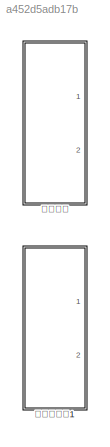
MODEL slx_a452d5adb17b
KIND model
CONFIG AbsTol = auto
CONFIG FixedStep = 0.001
CONFIG MaxStep = auto
CONFIG MinStep = auto
CONFIG RelTol = 1e-3
CONFIG SampleTimeConstraint = Unconstrained
CONFIG Solver = ode4
CONFIG SolverMode = Auto
CONFIG SolverName = ode4
CONFIG StartTime = 0.0
CONFIG StopTime = 10.0
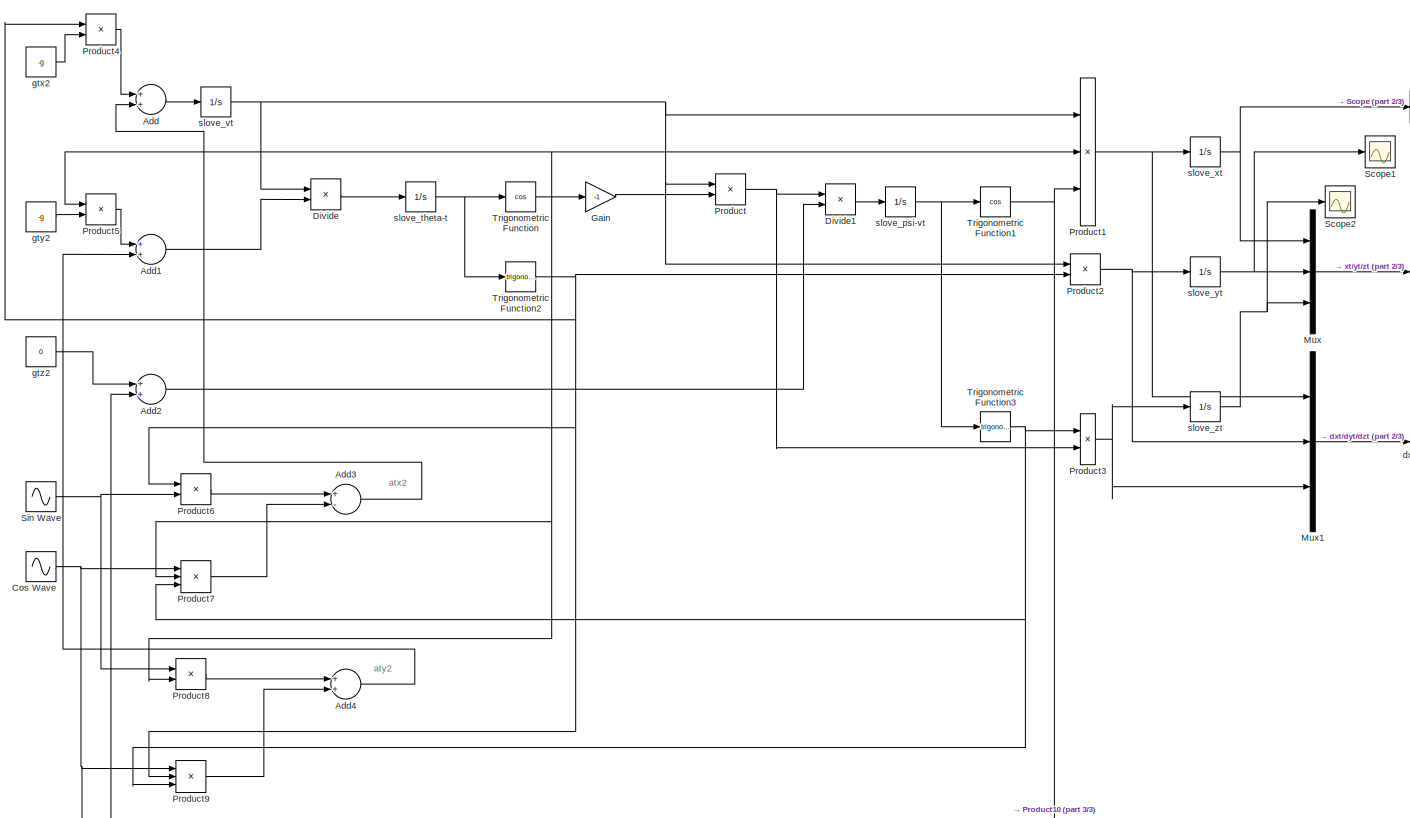
[diagram: 目标机动 - part 1/3, most of the canvas]
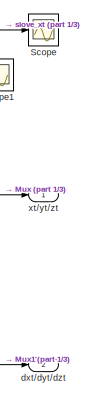
[diagram: 目标机动 - part 2/3, top right region]
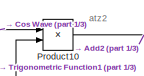
[diagram: 目标机动 - part 3/3, bottom left region]
BLOCK [SubSystem] 目标机动
  Ports = [0, 2]
  RequestExecContextInheritance = off
  Variant = off
BLOCK [Sum] 目标机动/Add
  InputSameDT = off
  OutDataTypeStr = Inherit: Inherit via internal rule
  Ports = [2, 1]
  SaturateOnIntegerOverflow = off
BLOCK [Sum] 目标机动/Add1
  InputSameDT = off
  OutDataTypeStr = Inherit: Inherit via internal rule
  Ports = [2, 1]
  SaturateOnIntegerOverflow = off
BLOCK [Sum] 目标机动/Add2
  InputSameDT = off
  OutDataTypeStr = Inherit: Inherit via internal rule
  Ports = [2, 1]
  SaturateOnIntegerOverflow = off
BLOCK [Sum] 目标机动/Add3
  InputSameDT = off
  Inputs = +-
  OutDataTypeStr = Inherit: Inherit via internal rule
  Ports = [2, 1]
  SaturateOnIntegerOverflow = off
BLOCK [Sum] 目标机动/Add4
  InputSameDT = off
  OutDataTypeStr = Inherit: Inherit via internal rule
  Ports = [2, 1]
  SaturateOnIntegerOverflow = off
BLOCK [Sin] 目标机动/Cos Wave
  Amplitude = 7*9.8
  Phase = pi/2
  Ports = [0, 1]
  SampleTime = 0
BLOCK [Product] 目标机动/Divide
  InputSameDT = off
  Inputs = /*
  OutDataTypeStr = Inherit: Inherit via internal rule
  Ports = [2, 1]
  RndMeth = Floor
  SaturateOnIntegerOverflow = off
BLOCK [Product] 目标机动/Divide1
  InputSameDT = off
  Inputs = /*
  OutDataTypeStr = Inherit: Inherit via internal rule
  Ports = [2, 1]
  RndMeth = Floor
  SaturateOnIntegerOverflow = off
BLOCK [Gain] 目标机动/Gain
  Gain = -1
  OutDataTypeStr = Inherit: Inherit via internal rule
  ParamDataTypeStr = Inherit: Inherit via internal rule
  SaturateOnIntegerOverflow = off
BLOCK [Mux] 目标机动/Mux
  DisplayOption = bar
  Inputs = 3
  Ports = [3, 1]
BLOCK [Mux] 目标机动/Mux1
  DisplayOption = bar
  Inputs = 3
  Ports = [3, 1]
BLOCK [Product] 目标机动/Product
  InputSameDT = off
  OutDataTypeStr = Inherit: Inherit via internal rule
  Ports = [2, 1]
  RndMeth = Floor
  SaturateOnIntegerOverflow = off
BLOCK [Product] 目标机动/Product1
  InputSameDT = off
  Inputs = 3
  OutDataTypeStr = Inherit: Inherit via internal rule
  Ports = [3, 1]
  RndMeth = Floor
  SaturateOnIntegerOverflow = off
BLOCK [Product] 目标机动/Product10
  InputSameDT = off
  OutDataTypeStr = Inherit: Inherit via internal rule
  Ports = [2, 1]
  RndMeth = Floor
  SaturateOnIntegerOverflow = off
BLOCK [Product] 目标机动/Product2
  InputSameDT = off
  OutDataTypeStr = Inherit: Inherit via internal rule
  Ports = [2, 1]
  RndMeth = Floor
  SaturateOnIntegerOverflow = off
BLOCK [Product] 目标机动/Product3
  InputSameDT = off
  OutDataTypeStr = Inherit: Inherit via internal rule
  Ports = [2, 1]
  RndMeth = Floor
  SaturateOnIntegerOverflow = off
BLOCK [Product] 目标机动/Product4
  InputSameDT = off
  OutDataTypeStr = Inherit: Inherit via internal rule
  Ports = [2, 1]
  RndMeth = Floor
  SaturateOnIntegerOverflow = off
BLOCK [Product] 目标机动/Product5
  InputSameDT = off
  OutDataTypeStr = Inherit: Inherit via internal rule
  Ports = [2, 1]
  RndMeth = Floor
  SaturateOnIntegerOverflow = off
BLOCK [Product] 目标机动/Product6
  InputSameDT = off
  OutDataTypeStr = Inherit: Inherit via internal rule
  Ports = [2, 1]
  RndMeth = Floor
  SaturateOnIntegerOverflow = off
BLOCK [Product] 目标机动/Product7
  InputSameDT = off
  Inputs = 3
  OutDataTypeStr = Inherit: Inherit via internal rule
  Ports = [3, 1]
  RndMeth = Floor
  SaturateOnIntegerOverflow = off
BLOCK [Product] 目标机动/Product8
  InputSameDT = off
  OutDataTypeStr = Inherit: Inherit via internal rule
  Ports = [2, 1]
  RndMeth = Floor
  SaturateOnIntegerOverflow = off
BLOCK [Product] 目标机动/Product9
  InputSameDT = off
  Inputs = 3
  OutDataTypeStr = Inherit: Inherit via internal rule
  Ports = [3, 1]
  RndMeth = Floor
  SaturateOnIntegerOverflow = off
BLOCK [Scope] 目标机动/Scope
  Ports = [1]
  ScopeSpecificationString = Simulink.scopes.TimeScopeBlockCfg('CurrentConfiguration', extmgr.ConfigurationSet(extmgr.Configuration('Core','General UI',true),extmgr.Configuration('Core','Source UI',true),extmgr.Configuration('Sources','WiredSimulink',true,'DataLoggingVariableName','xt','DataLogging',true,'DataLoggingSaveFormat','StructureWithTime'),extmgr.Configuration('Visuals','Time Domain',true,'SerializedDisplays',{struct...<+1475ch>
BLOCK [Scope] 目标机动/Scope1
  Ports = [1]
  ScopeSpecificationString = Simulink.scopes.TimeScopeBlockCfg('CurrentConfiguration', extmgr.ConfigurationSet(extmgr.Configuration('Core','General UI',true),extmgr.Configuration('Core','Source UI',true),extmgr.Configuration('Sources','WiredSimulink',true,'DataLoggingVariableName','yt','DataLogging',true,'DataLoggingSaveFormat','StructureWithTime'),extmgr.Configuration('Visuals','Time Domain',true,'SerializedDisplays',{struct...<+1515ch>
BLOCK [Scope] 目标机动/Scope2
  Ports = [1]
  ScopeSpecificationString = Simulink.scopes.TimeScopeBlockCfg('CurrentConfiguration', extmgr.ConfigurationSet(extmgr.Configuration('Core','General UI',true),extmgr.Configuration('Core','Source UI',true),extmgr.Configuration('Sources','WiredSimulink',true,'DataLoggingVariableName','zt','DataLogging',true,'DataLoggingSaveFormat','StructureWithTime'),extmgr.Configuration('Visuals','Time Domain',true,'SerializedDisplays',{struct...<+1518ch>
BLOCK [Sin] 目标机动/Sin Wave
  Amplitude = 7*9.8
  Ports = [0, 1]
  SampleTime = 0
BLOCK [Trigonometry] 目标机动/Trigonometric Function
  Operator = cos
  Ports = [1, 1]
BLOCK [Trigonometry] 目标机动/Trigonometric Function1
  Operator = cos
  Ports = [1, 1]
BLOCK [Trigonometry] 目标机动/Trigonometric Function2
  Ports = [1, 1]
BLOCK [Trigonometry] 目标机动/Trigonometric Function3
  Ports = [1, 1]
BLOCK [Outport] 目标机动/dxt//dyt//dzt
  IconDisplay = Port number
  Port = 2
BLOCK [Constant] 目标机动/gtx2
  Value = -g
BLOCK [Constant] 目标机动/gty2
  Value = -g
BLOCK [Constant] 目标机动/gtz2
  Value = 0
BLOCK [Integrator] 目标机动/slove_psi-vt
  InitialCondition = 120/57.3
  Ports = [1, 1]
BLOCK [Integrator] 目标机动/slove_theta-t
  InitialCondition = -30/57.3
  Ports = [1, 1]
BLOCK [Integrator] 目标机动/slove_vt
  InitialCondition = 800
  Ports = [1, 1]
BLOCK [Integrator] 目标机动/slove_xt
  InitialCondition = 11136
  Ports = [1, 1]
BLOCK [Integrator] 目标机动/slove_yt
  InitialCondition = 8603.6
  Ports = [1, 1]
BLOCK [Integrator] 目标机动/slove_zt
  InitialCondition = 5192.8
  Ports = [1, 1]
BLOCK [Outport] 目标机动/xt//yt//zt
  IconDisplay = Port number
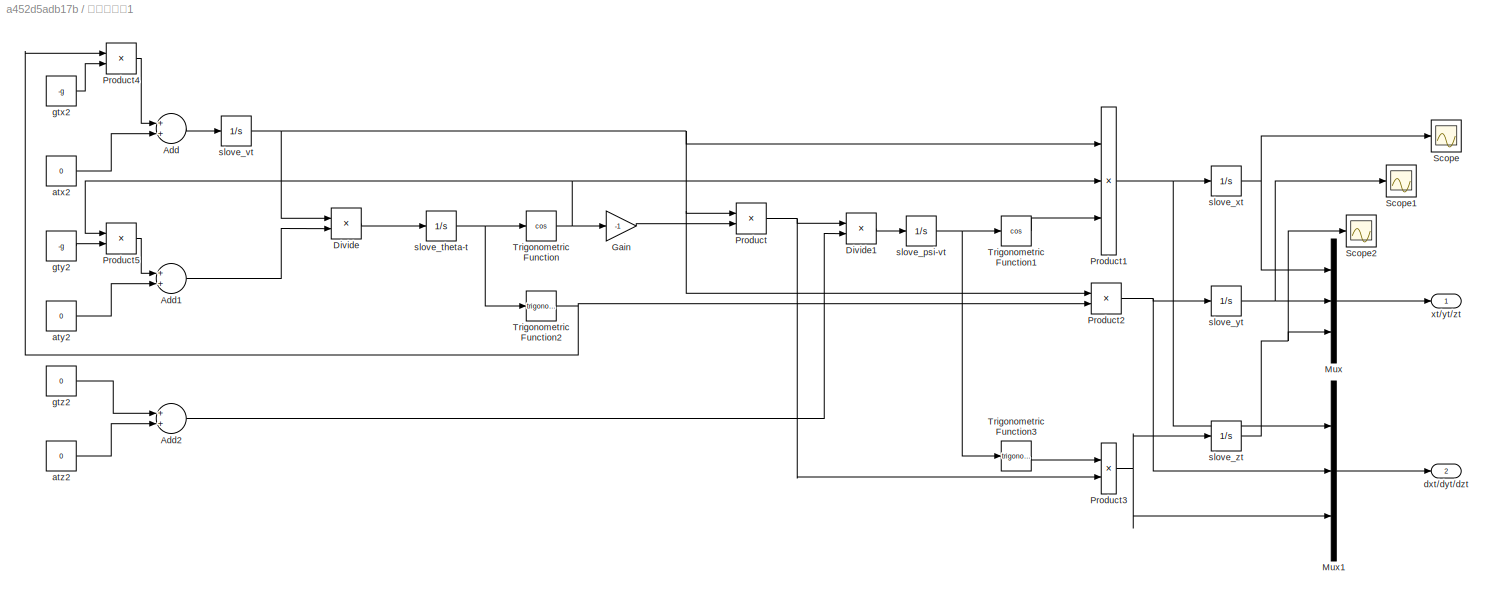
BLOCK [SubSystem] 目标运动学1
  Ports = [0, 2]
  RequestExecContextInheritance = off
  Variant = off
BLOCK [Sum] 目标运动学1/Add
  InputSameDT = off
  OutDataTypeStr = Inherit: Inherit via internal rule
  Ports = [2, 1]
  SaturateOnIntegerOverflow = off
BLOCK [Sum] 目标运动学1/Add1
  InputSameDT = off
  OutDataTypeStr = Inherit: Inherit via internal rule
  Ports = [2, 1]
  SaturateOnIntegerOverflow = off
BLOCK [Sum] 目标运动学1/Add2
  InputSameDT = off
  OutDataTypeStr = Inherit: Inherit via internal rule
  Ports = [2, 1]
  SaturateOnIntegerOverflow = off
BLOCK [Product] 目标运动学1/Divide
  InputSameDT = off
  Inputs = /*
  OutDataTypeStr = Inherit: Inherit via internal rule
  Ports = [2, 1]
  RndMeth = Floor
  SaturateOnIntegerOverflow = off
BLOCK [Product] 目标运动学1/Divide1
  InputSameDT = off
  Inputs = /*
  OutDataTypeStr = Inherit: Inherit via internal rule
  Ports = [2, 1]
  RndMeth = Floor
  SaturateOnIntegerOverflow = off
BLOCK [Gain] 目标运动学1/Gain
  Gain = -1
  OutDataTypeStr = Inherit: Inherit via internal rule
  ParamDataTypeStr = Inherit: Inherit via internal rule
  SaturateOnIntegerOverflow = off
BLOCK [Mux] 目标运动学1/Mux
  DisplayOption = bar
  Inputs = 3
  Ports = [3, 1]
BLOCK [Mux] 目标运动学1/Mux1
  DisplayOption = bar
  Inputs = 3
  Ports = [3, 1]
BLOCK [Product] 目标运动学1/Product
  InputSameDT = off
  OutDataTypeStr = Inherit: Inherit via internal rule
  Ports = [2, 1]
  RndMeth = Floor
  SaturateOnIntegerOverflow = off
BLOCK [Product] 目标运动学1/Product1
  InputSameDT = off
  Inputs = 3
  OutDataTypeStr = Inherit: Inherit via internal rule
  Ports = [3, 1]
  RndMeth = Floor
  SaturateOnIntegerOverflow = off
BLOCK [Product] 目标运动学1/Product2
  InputSameDT = off
  OutDataTypeStr = Inherit: Inherit via internal rule
  Ports = [2, 1]
  RndMeth = Floor
  SaturateOnIntegerOverflow = off
BLOCK [Product] 目标运动学1/Product3
  InputSameDT = off
  OutDataTypeStr = Inherit: Inherit via internal rule
  Ports = [2, 1]
  RndMeth = Floor
  SaturateOnIntegerOverflow = off
BLOCK [Product] 目标运动学1/Product4
  InputSameDT = off
  OutDataTypeStr = Inherit: Inherit via internal rule
  Ports = [2, 1]
  RndMeth = Floor
  SaturateOnIntegerOverflow = off
BLOCK [Product] 目标运动学1/Product5
  InputSameDT = off
  OutDataTypeStr = Inherit: Inherit via internal rule
  Ports = [2, 1]
  RndMeth = Floor
  SaturateOnIntegerOverflow = off
BLOCK [Scope] 目标运动学1/Scope
  Ports = [1]
  ScopeSpecificationString = Simulink.scopes.TimeScopeBlockCfg('CurrentConfiguration', extmgr.ConfigurationSet(extmgr.Configuration('Core','General UI',true),extmgr.Configuration('Core','Source UI',true),extmgr.Configuration('Sources','WiredSimulink',true,'DataLoggingVariableName','xt','DataLogging',true,'DataLoggingSaveFormat','StructureWithTime'),extmgr.Configuration('Visuals','Time Domain',true,'SerializedDisplays',{struct...<+1499ch>
BLOCK [Scope] 目标运动学1/Scope1
  Ports = [1]
  ScopeSpecificationString = Simulink.scopes.TimeScopeBlockCfg('CurrentConfiguration', extmgr.ConfigurationSet(extmgr.Configuration('Core','General UI',true),extmgr.Configuration('Core','Source UI',true),extmgr.Configuration('Sources','WiredSimulink',true,'DataLoggingVariableName','yt','DataLogging',true,'DataLoggingSaveFormat','StructureWithTime'),extmgr.Configuration('Visuals','Time Domain',true,'SerializedDisplays',{struct...<+1499ch>
BLOCK [Scope] 目标运动学1/Scope2
  Ports = [1]
  ScopeSpecificationString = Simulink.scopes.TimeScopeBlockCfg('CurrentConfiguration', extmgr.ConfigurationSet(extmgr.Configuration('Core','General UI',true),extmgr.Configuration('Core','Source UI',true),extmgr.Configuration('Sources','WiredSimulink',true,'DataLoggingVariableName','zt','DataLogging',true,'DataLoggingSaveFormat','StructureWithTime'),extmgr.Configuration('Visuals','Time Domain',true,'SerializedDisplays',{struct...<+1499ch>
BLOCK [Trigonometry] 目标运动学1/Trigonometric Function
  Operator = cos
  Ports = [1, 1]
BLOCK [Trigonometry] 目标运动学1/Trigonometric Function1
  Operator = cos
  Ports = [1, 1]
BLOCK [Trigonometry] 目标运动学1/Trigonometric Function2
  Ports = [1, 1]
BLOCK [Trigonometry] 目标运动学1/Trigonometric Function3
  Ports = [1, 1]
BLOCK [Constant] 目标运动学1/atx2
  Value = 0
BLOCK [Constant] 目标运动学1/aty2
  Value = 0
BLOCK [Constant] 目标运动学1/atz2
  Value = 0
BLOCK [Outport] 目标运动学1/dxt//dyt//dzt
  IconDisplay = Port number
  Port = 2
BLOCK [Constant] 目标运动学1/gtx2
  Value = -g
BLOCK [Constant] 目标运动学1/gty2
  Value = -g
BLOCK [Constant] 目标运动学1/gtz2
  Value = 0
BLOCK [Integrator] 目标运动学1/slove_psi-vt
  InitialCondition = 120/57.3
  Ports = [1, 1]
BLOCK [Integrator] 目标运动学1/slove_theta-t
  InitialCondition = -30/57.3
  Ports = [1, 1]
BLOCK [Integrator] 目标运动学1/slove_vt
  InitialCondition = 800
  Ports = [1, 1]
BLOCK [Integrator] 目标运动学1/slove_xt
  InitialCondition = 11136
  Ports = [1, 1]
BLOCK [Integrator] 目标运动学1/slove_yt
  InitialCondition = 8603.6
  Ports = [1, 1]
BLOCK [Integrator] 目标运动学1/slove_zt
  InitialCondition = 5192.8
  Ports = [1, 1]
BLOCK [Outport] 目标运动学1/xt//yt//zt
  IconDisplay = Port number
ANNOTATION 目标机动: atx2
ANNOTATION 目标机动: aty2
ANNOTATION 目标机动: atz2
LINE 目标机动/Add1:1 -> 目标机动/Divide:2
LINE 目标机动/Add2:1 -> 目标机动/Divide1:2
LINE 目标机动/Add3:1 -> 目标机动/Add:2
LINE 目标机动/Add4:1 -> 目标机动/Add1:2
LINE 目标机动/Add:1 -> 目标机动/slove_vt:1
NET 目标机动/Cos Wave:1 -> 目标机动/Product10:1, 目标机动/Product7:1, 目标机动/Product9:1
LINE 目标机动/Divide1:1 -> 目标机动/slove_psi-vt:1
LINE 目标机动/Divide:1 -> 目标机动/slove_theta-t:1
LINE 目标机动/Gain:1 -> 目标机动/Product:2
LINE 目标机动/Mux1:1 -> 目标机动/dxt//dyt//dzt:1
LINE 目标机动/Mux:1 -> 目标机动/xt//yt//zt:1
LINE 目标机动/Product10:1 -> 目标机动/Add2:2
NET 目标机动/Product1:1 -> 目标机动/Mux1:1, 目标机动/slove_xt:1
NET 目标机动/Product2:1 -> 目标机动/Mux1:2, 目标机动/slove_yt:1
NET 目标机动/Product3:1 -> 目标机动/Mux1:3, 目标机动/slove_zt:1
LINE 目标机动/Product4:1 -> 目标机动/Add:1
LINE 目标机动/Product5:1 -> 目标机动/Add1:1
LINE 目标机动/Product6:1 -> 目标机动/Add3:1
LINE 目标机动/Product7:1 -> 目标机动/Add3:2
LINE 目标机动/Product8:1 -> 目标机动/Add4:1
LINE 目标机动/Product9:1 -> 目标机动/Add4:2
NET 目标机动/Product:1 -> 目标机动/Divide1:1, 目标机动/Product3:2
NET 目标机动/Sin Wave:1 -> 目标机动/Product6:2, 目标机动/Product8:1
NET 目标机动/Trigonometric Function1:1 -> 目标机动/Product10:2, 目标机动/Product1:3
NET 目标机动/Trigonometric Function2:1 -> 目标机动/Product2:2, 目标机动/Product4:1, 目标机动/Product6:1, 目标机动/Product9:2
NET 目标机动/Trigonometric Function3:1 -> 目标机动/Product3:1, 目标机动/Product7:3, 目标机动/Product9:3
NET 目标机动/Trigonometric Function:1 -> 目标机动/Gain:1, 目标机动/Product1:2, 目标机动/Product5:1, 目标机动/Product7:2, 目标机动/Product8:2
LINE 目标机动/gtx2:1 -> 目标机动/Product4:2
LINE 目标机动/gty2:1 -> 目标机动/Product5:2
LINE 目标机动/gtz2:1 -> 目标机动/Add2:1
NET 目标机动/slove_psi-vt:1 -> 目标机动/Trigonometric Function1:1, 目标机动/Trigonometric Function3:1
NET 目标机动/slove_theta-t:1 -> 目标机动/Trigonometric Function2:1, 目标机动/Trigonometric Function:1
NET 目标机动/slove_vt:1 -> 目标机动/Divide:1, 目标机动/Product1:1, 目标机动/Product2:1, 目标机动/Product:1
NET 目标机动/slove_xt:1 -> 目标机动/Mux:1, 目标机动/Scope:1
NET 目标机动/slove_yt:1 -> 目标机动/Mux:2, 目标机动/Scope1:1
NET 目标机动/slove_zt:1 -> 目标机动/Mux:3, 目标机动/Scope2:1
LINE 目标运动学1/Add1:1 -> 目标运动学1/Divide:2
LINE 目标运动学1/Add2:1 -> 目标运动学1/Divide1:2
LINE 目标运动学1/Add:1 -> 目标运动学1/slove_vt:1
LINE 目标运动学1/Divide1:1 -> 目标运动学1/slove_psi-vt:1
LINE 目标运动学1/Divide:1 -> 目标运动学1/slove_theta-t:1
LINE 目标运动学1/Gain:1 -> 目标运动学1/Product:2
LINE 目标运动学1/Mux1:1 -> 目标运动学1/dxt//dyt//dzt:1
LINE 目标运动学1/Mux:1 -> 目标运动学1/xt//yt//zt:1
NET 目标运动学1/Product1:1 -> 目标运动学1/Mux1:1, 目标运动学1/slove_xt:1
NET 目标运动学1/Product2:1 -> 目标运动学1/Mux1:2, 目标运动学1/slove_yt:1
NET 目标运动学1/Product3:1 -> 目标运动学1/Mux1:3, 目标运动学1/slove_zt:1
LINE 目标运动学1/Product4:1 -> 目标运动学1/Add:1
LINE 目标运动学1/Product5:1 -> 目标运动学1/Add1:1
NET 目标运动学1/Product:1 -> 目标运动学1/Divide1:1, 目标运动学1/Product3:2
LINE 目标运动学1/Trigonometric Function1:1 -> 目标运动学1/Product1:3
NET 目标运动学1/Trigonometric Function2:1 -> 目标运动学1/Product2:2, 目标运动学1/Product4:1
LINE 目标运动学1/Trigonometric Function3:1 -> 目标运动学1/Product3:1
NET 目标运动学1/Trigonometric Function:1 -> 目标运动学1/Gain:1, 目标运动学1/Product1:2, 目标运动学1/Product5:1
LINE 目标运动学1/atx2:1 -> 目标运动学1/Add:2
LINE 目标运动学1/aty2:1 -> 目标运动学1/Add1:2
LINE 目标运动学1/atz2:1 -> 目标运动学1/Add2:2
LINE 目标运动学1/gtx2:1 -> 目标运动学1/Product4:2
LINE 目标运动学1/gty2:1 -> 目标运动学1/Product5:2
LINE 目标运动学1/gtz2:1 -> 目标运动学1/Add2:1
NET 目标运动学1/slove_psi-vt:1 -> 目标运动学1/Trigonometric Function1:1, 目标运动学1/Trigonometric Function3:1
NET 目标运动学1/slove_theta-t:1 -> 目标运动学1/Trigonometric Function2:1, 目标运动学1/Trigonometric Function:1
NET 目标运动学1/slove_vt:1 -> 目标运动学1/Divide:1, 目标运动学1/Product1:1, 目标运动学1/Product2:1, 目标运动学1/Product:1
NET 目标运动学1/slove_xt:1 -> 目标运动学1/Mux:1, 目标运动学1/Scope:1
NET 目标运动学1/slove_yt:1 -> 目标运动学1/Mux:2, 目标运动学1/Scope1:1
NET 目标运动学1/slove_zt:1 -> 目标运动学1/Mux:3, 目标运动学1/Scope2:1
note: NET lines group one-source signal fan-out (src -> all destinations, sorted); 1:1 wires keep LINE
